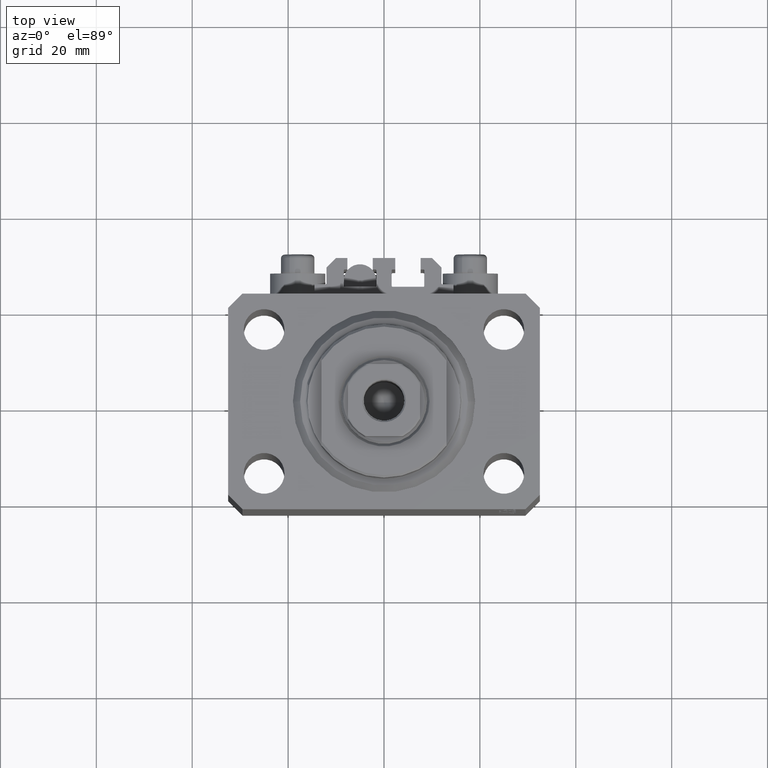
[diagram: clean part render]
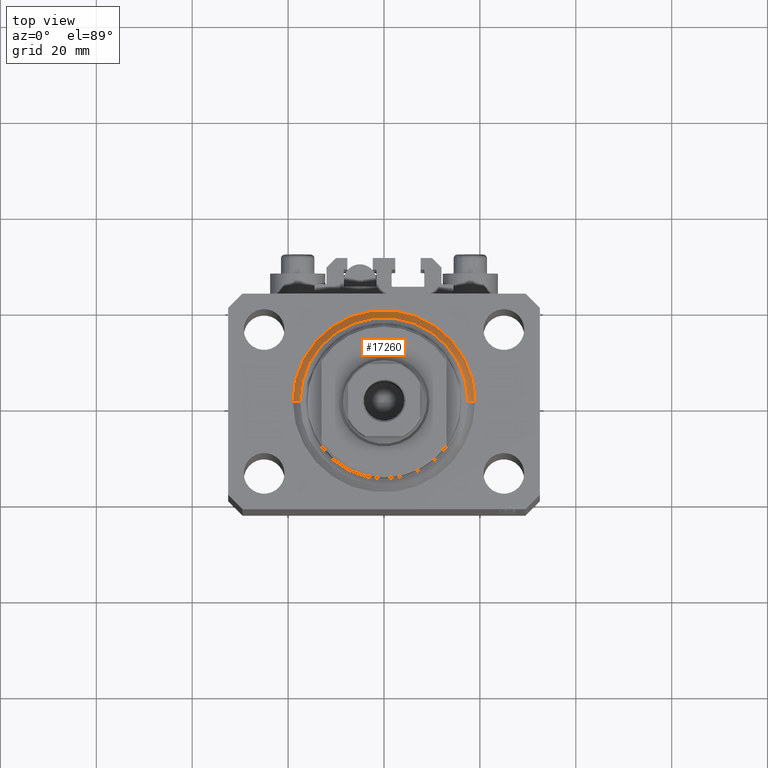
[diagram: same view with one face highlighted and labeled with its STEP entity id]
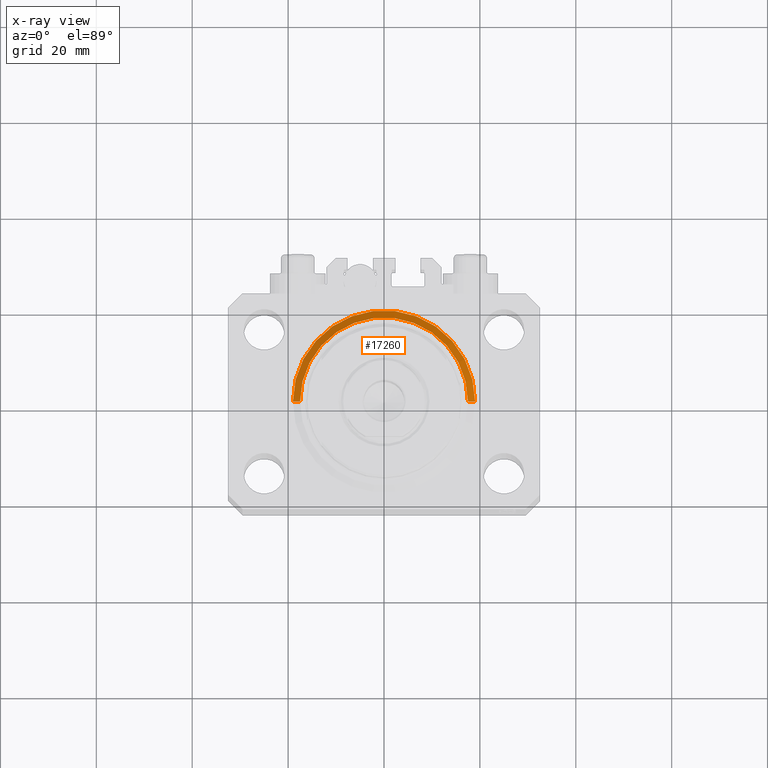
[diagram: x-ray of the same camera — body ghosted, the highlighted face saturated]
A machine part, top view. The second image highlights one B-rep face of the part: STEP entity #17260.
The next image is the same camera in x-ray: the body ghosted, the highlighted face saturated — about 0% of this face is hidden behind the body in this view.
In plain terms, the highlighted conical surface has half-angle 45 deg.
Its self-contained STEP definition (entity closure, byte-faithful):
#3092 = CONICAL_SURFACE ( 'NONE', #15470, 19.00000000000000000, 0.7853981633974492782 ) ;
#3196 = DIRECTION ( 'NONE',  ( 0.7071067811865483499, 0.000000000000000000, 0.7071067811865467956 ) ) ;
#5200 = VERTEX_POINT ( 'NONE', #25011 ) ;
#6214 = ORIENTED_EDGE ( 'NONE', *, *, #40515, .F. ) ;
#6745 = FACE_OUTER_BOUND ( 'NONE', #9463, .T. ) ;
#9463 = EDGE_LOOP ( 'NONE', ( #33394, #18461, #6214, #20280 ) ) ;
#11683 = CARTESIAN_POINT ( 'NONE',  ( 19.00000000000000000, 2.326828918379970970E-15, 1.500000000000004885 ) ) ;
#13257 = EDGE_CURVE ( 'NONE', #5200, #20440, #25567, .T. ) ;
#14370 = DIRECTION ( 'NONE',  ( -0.000000000000000000, -0.000000000000000000, -1.000000000000000000 ) ) ;
#14393 = CIRCLE ( 'NONE', #37796, 19.00000000000000000 ) ;
#14441 = EDGE_CURVE ( 'NONE', #5200, #16217, #45439, .T. ) ;
#15470 = AXIS2_PLACEMENT_3D ( 'NONE', #17969, #45509, #26752 ) ;
#16217 = VERTEX_POINT ( 'NONE', #28172 ) ;
#17260 = ADVANCED_FACE ( 'NONE', ( #6745 ), #3092, .T. ) ;
#17920 = VERTEX_POINT ( 'NONE', #11683 ) ;
#17969 = CARTESIAN_POINT ( 'NONE',  ( 0.000000000000000000, 0.000000000000000000, 1.500000000000004885 ) ) ;
#18079 = LINE ( 'NONE', #25660, #24403 ) ;
#18279 = CARTESIAN_POINT ( 'NONE',  ( 17.49999999999999289, 0.000000000000000000, 0.000000000000000000 ) ) ;
#18461 = ORIENTED_EDGE ( 'NONE', *, *, #14441, .T. ) ;
#20280 = ORIENTED_EDGE ( 'NONE', *, *, #36673, .F. ) ;
#20440 = VERTEX_POINT ( 'NONE', #18279 ) ;
#20535 = CARTESIAN_POINT ( 'NONE',  ( -19.00000000000000000, 2.326828918379970970E-15, 1.500000000000004885 ) ) ;
#24403 = VECTOR ( 'NONE', #3196, 1000.000000000000000 ) ;
#25011 = CARTESIAN_POINT ( 'NONE',  ( -17.49999999999999289, 2.234980408443919215E-15, 0.000000000000000000 ) ) ;
#25518 = DIRECTION ( 'NONE',  ( -0.000000000000000000, -0.000000000000000000, 1.000000000000000000 ) ) ;
#25567 = CIRCLE ( 'NONE', #47359, 17.49999999999999289 ) ;
#25615 = VECTOR ( 'NONE', #45920, 1000.000000000000000 ) ;
#25660 = CARTESIAN_POINT ( 'NONE',  ( 19.00000000000000000, 0.000000000000000000, 1.500000000000004885 ) ) ;
#26752 = DIRECTION ( 'NONE',  ( 1.000000000000000000, 0.000000000000000000, 0.000000000000000000 ) ) ;
#28172 = CARTESIAN_POINT ( 'NONE',  ( -19.00000000000000000, 0.000000000000000000, 1.500000000000004885 ) ) ;
#28557 = CARTESIAN_POINT ( 'NONE',  ( 0.000000000000000000, 0.000000000000000000, 0.000000000000000000 ) ) ;
#33394 = ORIENTED_EDGE ( 'NONE', *, *, #13257, .F. ) ;
#35880 = DIRECTION ( 'NONE',  ( 1.000000000000000000, 0.000000000000000000, 0.000000000000000000 ) ) ;
#36673 = EDGE_CURVE ( 'NONE', #20440, #17920, #18079, .T. ) ;
#37796 = AXIS2_PLACEMENT_3D ( 'NONE', #44040, #25518, #40388 ) ;
#40388 = DIRECTION ( 'NONE',  ( 1.000000000000000000, 0.000000000000000000, 0.000000000000000000 ) ) ;
#40515 = EDGE_CURVE ( 'NONE', #17920, #16217, #14393, .T. ) ;
#44040 = CARTESIAN_POINT ( 'NONE',  ( 0.000000000000000000, 0.000000000000000000, 1.500000000000004885 ) ) ;
#45439 = LINE ( 'NONE', #20535, #25615 ) ;
#45509 = DIRECTION ( 'NONE',  ( -0.000000000000000000, -0.000000000000000000, 1.000000000000000000 ) ) ;
#45920 = DIRECTION ( 'NONE',  ( -0.7071067811865483499, 8.659560562354943952E-17, 0.7071067811865467956 ) ) ;
#47359 = AXIS2_PLACEMENT_3D ( 'NONE', #28557, #14370, #35880 ) ;